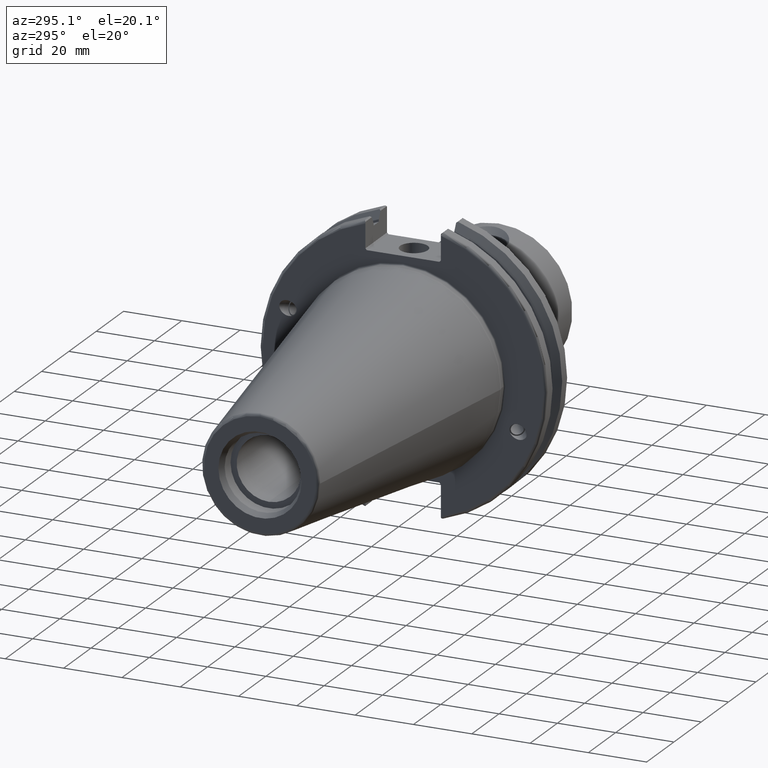
[diagram: clean part render]
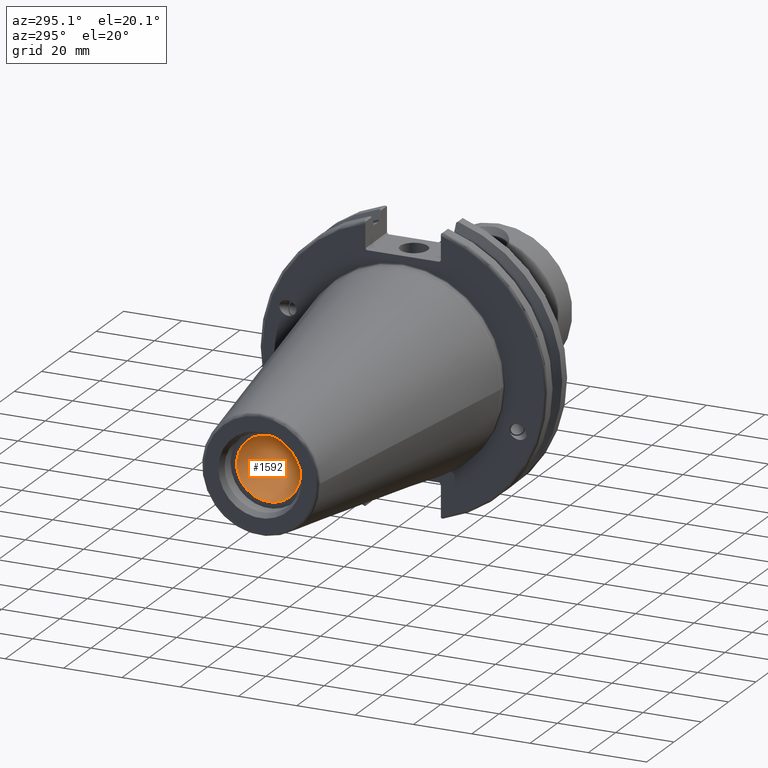
[diagram: same view with one face highlighted and labeled with its STEP entity id]
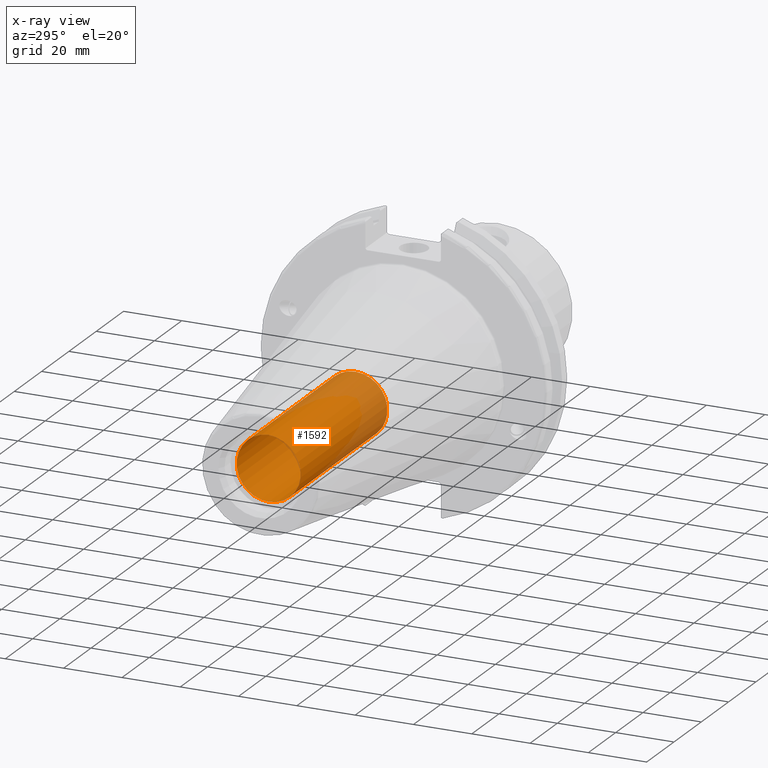
[diagram: x-ray of the same camera — body ghosted, the highlighted face saturated]
A machine part, auxiliary view. The second image highlights one B-rep face of the part: STEP entity #1592.
The next image is the same camera in x-ray: the body ghosted, the highlighted face saturated — about 27% of this face is hidden behind the body in this view.
In plain terms, the highlighted cylindrical surface (bore or boss wall) has radius 10.9855 mm, axis along (-1, 0, 0).
Its self-contained STEP definition (entity closure, byte-faithful):
#146=CIRCLE('',#1732,10.9855);
#147=CIRCLE('',#1733,10.9855);
#218=FACE_OUTER_BOUND('',#319,.T.);
#319=EDGE_LOOP('',(#1157,#1158,#1159,#1160));
#482=LINE('',#2649,#576);
#576=VECTOR('',#1971,10.9855);
#698=VERTEX_POINT('',#2646);
#699=VERTEX_POINT('',#2648);
#876=EDGE_CURVE('',#698,#698,#146,.T.);
#877=EDGE_CURVE('',#698,#699,#482,.T.);
#878=EDGE_CURVE('',#699,#699,#147,.T.);
#1157=ORIENTED_EDGE('',*,*,#876,.F.);
#1158=ORIENTED_EDGE('',*,*,#877,.T.);
#1159=ORIENTED_EDGE('',*,*,#878,.F.);
#1160=ORIENTED_EDGE('',*,*,#877,.F.);
#1552=CYLINDRICAL_SURFACE('',#1731,10.9855);
#1592=ADVANCED_FACE('',(#218),#1552,.F.);
#1731=AXIS2_PLACEMENT_3D('',#2645,#1967,#1968);
#1732=AXIS2_PLACEMENT_3D('',#2647,#1969,#1970);
#1733=AXIS2_PLACEMENT_3D('',#2650,#1972,#1973);
#1967=DIRECTION('center_axis',(-1.,0.,0.));
#1968=DIRECTION('ref_axis',(0.,0.,1.));
#1969=DIRECTION('center_axis',(1.,0.,0.));
#1970=DIRECTION('ref_axis',(0.,0.,1.));
#1971=DIRECTION('',(1.,0.,0.));
#1972=DIRECTION('center_axis',(-1.,0.,0.));
#1973=DIRECTION('ref_axis',(0.,0.,1.));
#2645=CARTESIAN_POINT('Origin',(125.6284950965,0.,0.));
#2646=CARTESIAN_POINT('',(-95.25,1.34533574120333E-15,-10.9855));
#2647=CARTESIAN_POINT('Origin',(-95.25,0.,0.));
#2648=CARTESIAN_POINT('',(-31.76,-1.34533574120333E-15,-10.9855));
#2649=CARTESIAN_POINT('',(125.6284950965,-1.34533574120333E-15,-10.9855));
#2650=CARTESIAN_POINT('Origin',(-31.76,0.,0.));